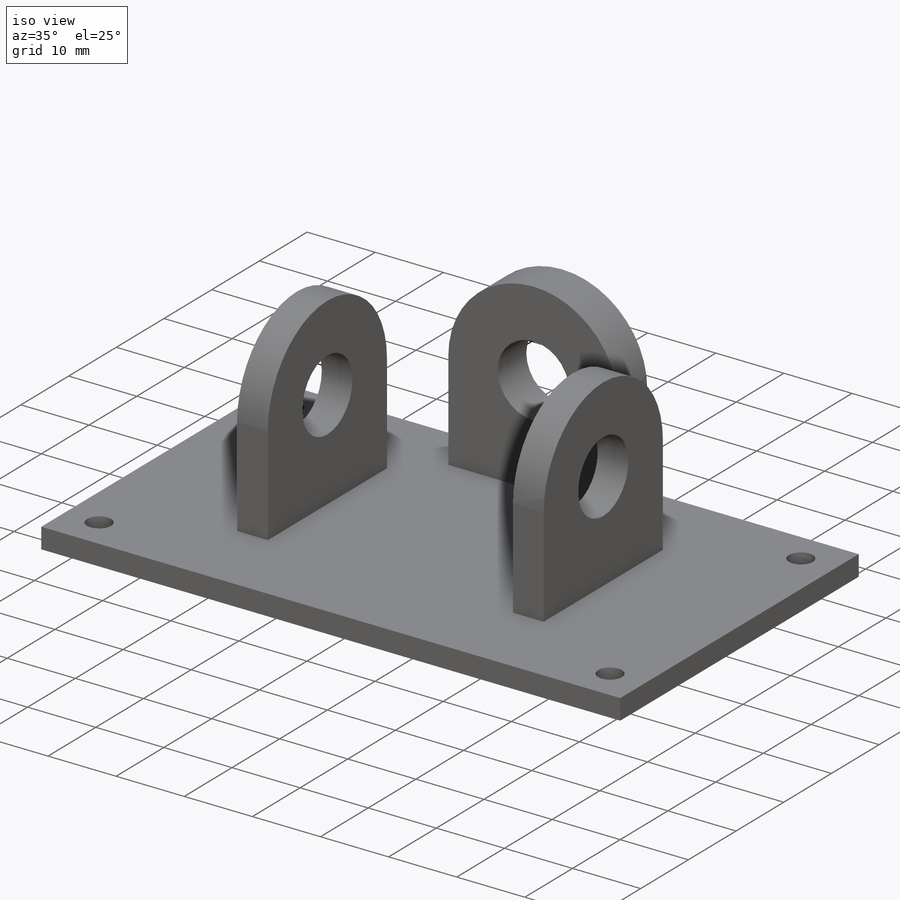
[diagram: iso view]
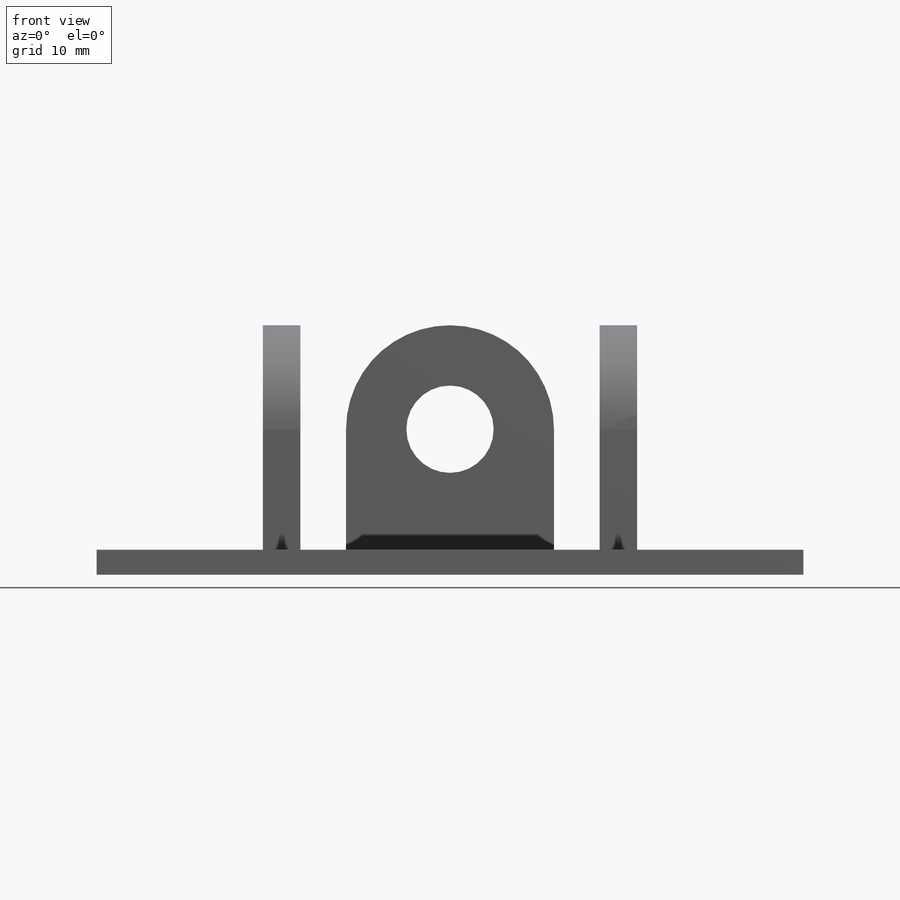
[diagram: front view]
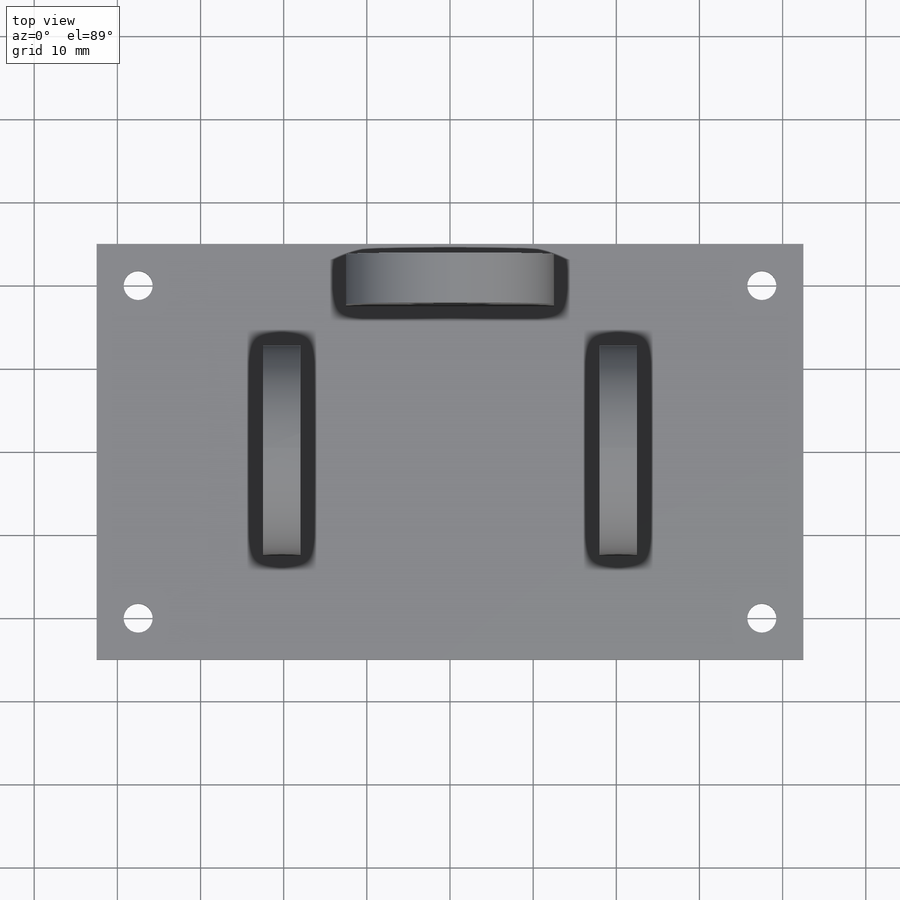
[diagram: top view]
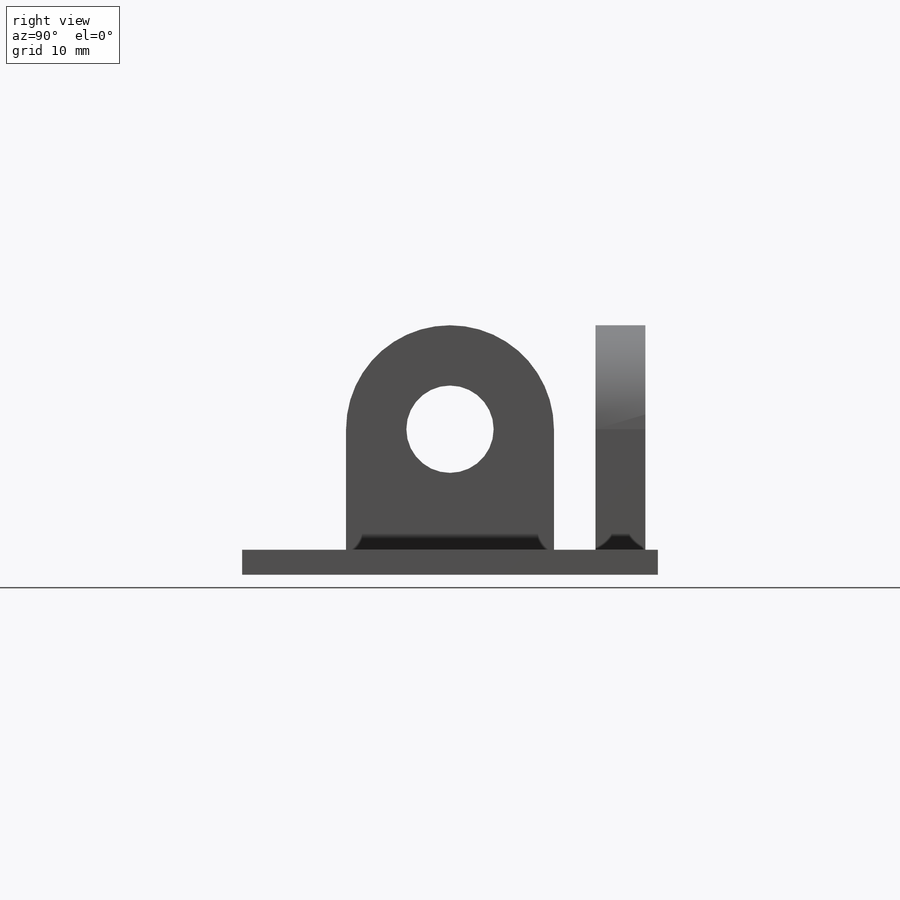
[diagram: right view]
SOLIDWORKS PART (.sldprt)
format: sldprt  version: not decoded by parser v0  size: 287,744 bytes
history: native  units: mm
features: sketch x7, plane x3, extrude x2, cut_extrude x2, material x1, fillet x1, hole x1 (+10 scaffold rows collapsed)
feature tree (27):
  scaffold x10  (default folders/planes/origin — collapsed)
  material  "uhlíková ocel 7850"
  plane  "Přední rovina"
  plane  "Horní rovina"
  plane  "Pravá rovina"
  sketch  "Skica1"  dims[D1=85.0mm D2=50.0mm]
  extrude  "Přidat vysunutím1"  Depth=3mm
  sketch  "Skica2"  dims[c1.D1=4.5mm c1.D2=25.0mm c1.D3=6.0mm c1.D4=6.0mm c1.D5=25.0mm c1.D6=20.5mm c2.D3=18.0mm]
  extrude  "Přidat vysunutím2"  Depth=27mm
  fillet  "Zaoblit1"  Radius=12.5mm
  sketch  "Skica3"  dims[D1=10.5mm]
  cut_extrude  "Odebrat vysunutím1"  [1 undecoded]
  sketch  "Skica4"  dims[D1=10.5mm]
  cut_extrude  "Odebrat vysunutím2"  [1 undecoded]
  sketch  "Skica5"  dims[D1=40.0mm D2=75.0mm]
  hole  "Díry pro kolík, velikost mm1"  Diameter=3.5mm Depth=10mm
  sketch  "Skica7"
  sketch  "Skica6"  dims[hole-wizard template sketch: 46 standard entries collapsed; hole parameters kept: c15.Průměr díry=3.5mm c15.Hloubka díry=10.0mm c15.D3=~14.816244mm c15.Úhel vrtání=118.0deg]
decode coverage: 10 of 13 modeling features carry decoded parameters
note: ~ marks probable driven/reference dimensions
note: 2 parameter values undecoded
note: suppression state not decoded; provenance and decode notes live in map.json
